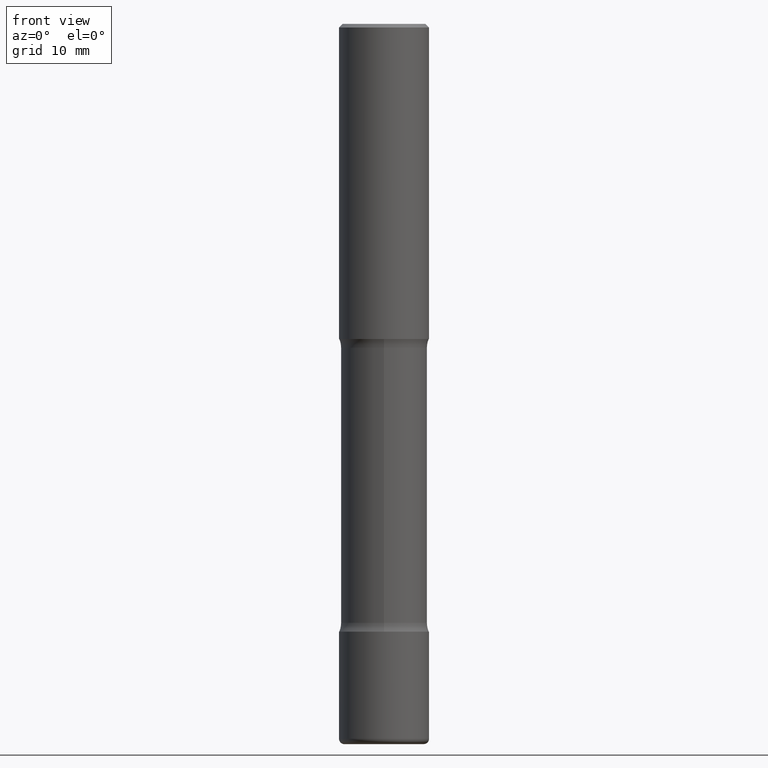
[diagram: clean part render]
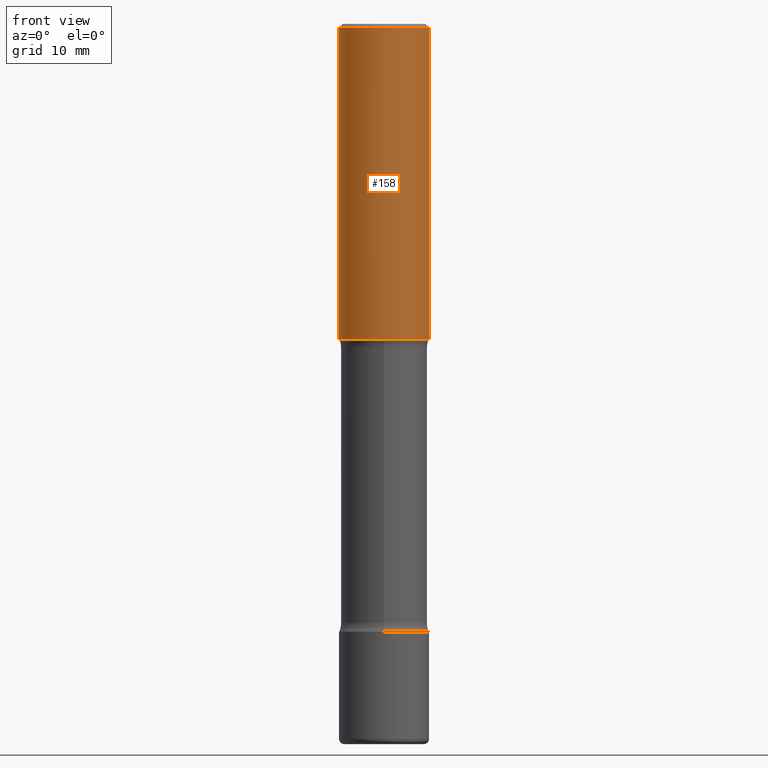
[diagram: same view with one face highlighted and labeled with its STEP entity id]
A machine part, front view. The second image highlights one B-rep face of the part: STEP entity #158.
In plain terms, the highlighted cylindrical surface (partial cylindrical patch) has radius 6.35 mm, axis along (-0, 0, 1).
Its self-contained STEP definition (entity closure, byte-faithful):
#17 = EDGE_CURVE ( 'NONE', #343, #321, #241, .T. ) ;
#25 = VERTEX_POINT ( 'NONE', #503 ) ;
#36 = EDGE_CURVE ( 'NONE', #501, #321, #82, .T. ) ;
#38 = ORIENTED_EDGE ( 'NONE', *, *, #36, .T. ) ;
#74 = CARTESIAN_POINT ( 'NONE',  ( 4.279570410823988484E-29, -6.110092342975504671E-15, -1.750000000000000000 ) ) ;
#82 = LINE ( 'NONE', #297, #344 ) ;
#97 = CARTESIAN_POINT ( 'NONE',  ( 0.000000000000000000, 0.000000000000000000, 0.000000000000000000 ) ) ;
#100 = FACE_OUTER_BOUND ( 'NONE', #404, .T. ) ;
#152 = DIRECTION ( 'NONE',  ( -2.445468806185136877E-29, 3.491481338843145188E-15, 1.000000000000000000 ) ) ;
#158 = ADVANCED_FACE ( 'NONE', ( #100 ), #175, .T. ) ;
#175 = CYLINDRICAL_SURFACE ( 'NONE', #424, 0.2500000000000002220 ) ;
#191 = LINE ( 'NONE', #236, #220 ) ;
#199 = CARTESIAN_POINT ( 'NONE',  ( -0.2500000000000001110, 1.675911042644704760E-15, -0.02000000000000000042 ) ) ;
#220 = VECTOR ( 'NONE', #152, 39.37007874015748143 ) ;
#236 = CARTESIAN_POINT ( 'NONE',  ( -0.2500000000000002220, 1.776356839400252042E-15, -1.229733772563727566E-29 ) ) ;
#241 = CIRCLE ( 'NONE', #384, 0.2500000000000001110 ) ;
#254 = DIRECTION ( 'NONE',  ( -2.445468806185136877E-29, 3.491481338843145188E-15, 1.000000000000000000 ) ) ;
#261 = CARTESIAN_POINT ( 'NONE',  ( 0.2500000000000003331, -7.855833012397073715E-15, -1.750000000000000000 ) ) ;
#271 = DIRECTION ( 'NONE',  ( 1.000000000000000000, -6.982962677686267499E-15, 4.876176775795936353E-29 ) ) ;
#297 = CARTESIAN_POINT ( 'NONE',  ( 0.2500000000000002220, -1.745740669421568453E-15, 1.219044193948985209E-29 ) ) ;
#317 = AXIS2_PLACEMENT_3D ( 'NONE', #74, #560, #459 ) ;
#321 = VERTEX_POINT ( 'NONE', #368 ) ;
#343 = VERTEX_POINT ( 'NONE', #199 ) ;
#344 = VECTOR ( 'NONE', #254, 39.37007874015748143 ) ;
#345 = CIRCLE ( 'NONE', #317, 0.2500000000000003331 ) ;
#348 = DIRECTION ( 'NONE',  ( -2.445468806185136597E-29, 3.491481338843145583E-15, 1.000000000000000000 ) ) ;
#360 = ORIENTED_EDGE ( 'NONE', *, *, #17, .F. ) ;
#368 = CARTESIAN_POINT ( 'NONE',  ( 0.2500000000000001110, -1.784954126219746583E-15, -0.02000000000000000042 ) ) ;
#380 = CARTESIAN_POINT ( 'NONE',  ( 4.890937612370273159E-31, -6.982962677686291609E-17, -0.02000000000000000042 ) ) ;
#384 = AXIS2_PLACEMENT_3D ( 'NONE', #380, #468, #429 ) ;
#404 = EDGE_LOOP ( 'NONE', ( #495, #450, #38, #360 ) ) ;
#417 = EDGE_CURVE ( 'NONE', #25, #343, #191, .T. ) ;
#424 = AXIS2_PLACEMENT_3D ( 'NONE', #97, #348, #271 ) ;
#429 = DIRECTION ( 'NONE',  ( 1.000000000000000000, -6.982962677686267499E-15, 0.000000000000000000 ) ) ;
#450 = ORIENTED_EDGE ( 'NONE', *, *, #524, .T. ) ;
#459 = DIRECTION ( 'NONE',  ( 1.000000000000000000, -6.982962677686265133E-15, 0.000000000000000000 ) ) ;
#468 = DIRECTION ( 'NONE',  ( -2.445468806185136597E-29, 3.491481338843145583E-15, 1.000000000000000000 ) ) ;
#495 = ORIENTED_EDGE ( 'NONE', *, *, #417, .F. ) ;
#501 = VERTEX_POINT ( 'NONE', #261 ) ;
#503 = CARTESIAN_POINT ( 'NONE',  ( -0.2500000000000003331, -1.313604145475929576E-15, -1.750000000000000000 ) ) ;
#524 = EDGE_CURVE ( 'NONE', #25, #501, #345, .T. ) ;
#560 = DIRECTION ( 'NONE',  ( -2.445468806185136597E-29, 3.491481338843145583E-15, 1.000000000000000000 ) ) ;